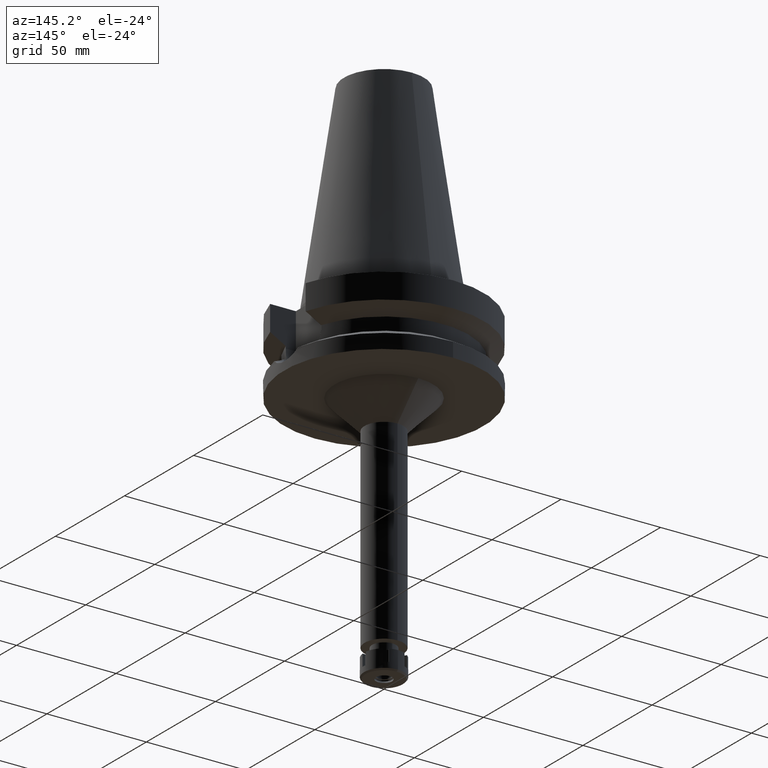
[diagram: clean part render]
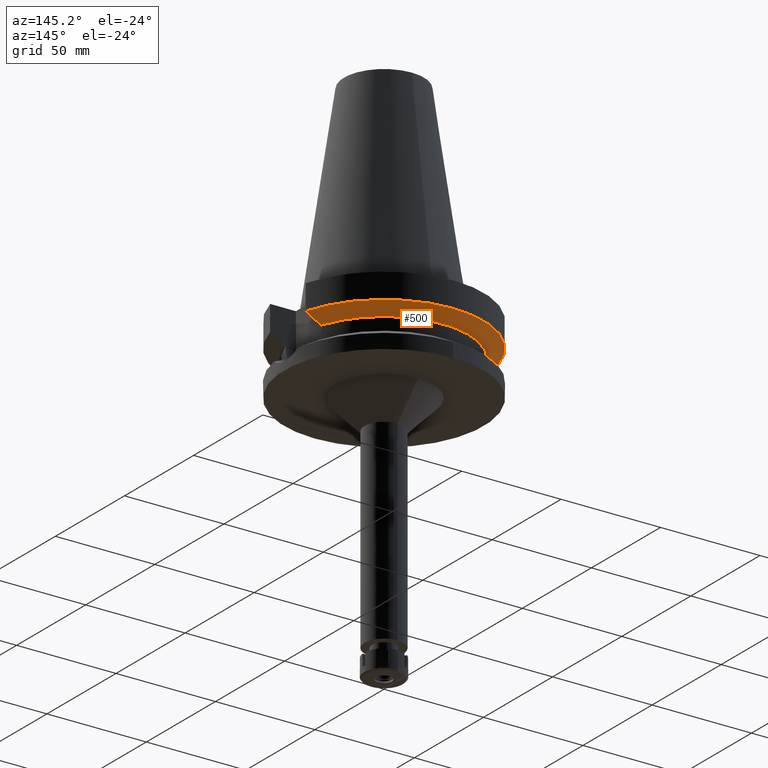
[diagram: same view with one face highlighted and labeled with its STEP entity id]
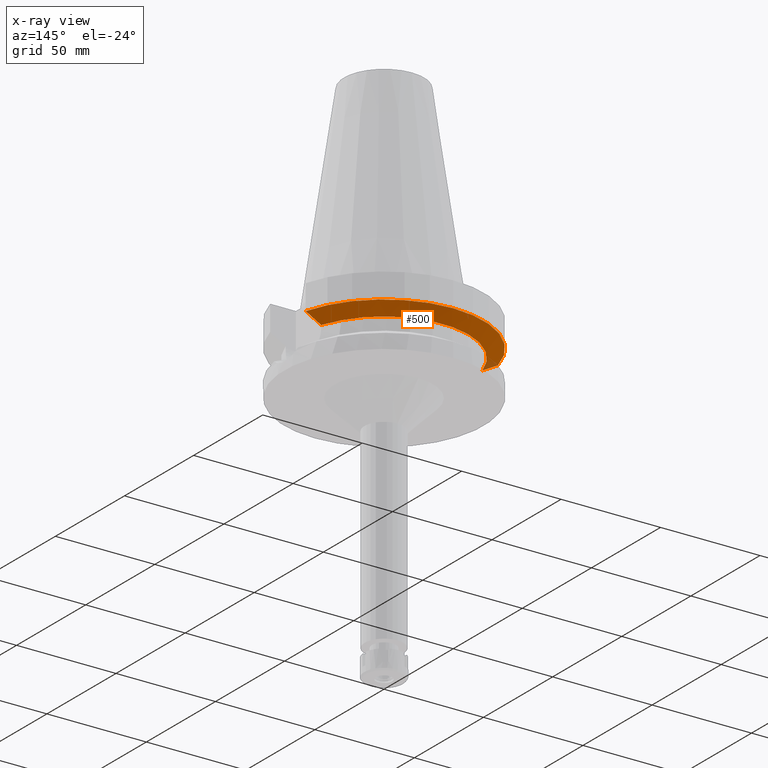
[diagram: x-ray of the same camera — body ghosted, the highlighted face saturated]
A machine part, auxiliary view. The second image highlights one B-rep face of the part: STEP entity #500.
The next image is the same camera in x-ray: the body ghosted, the highlighted face saturated — about 2% of this face is hidden behind the body in this view.
In plain terms, the highlighted conical surface has half-angle 60 deg.
Its self-contained STEP definition (entity closure, byte-faithful):
#49 = EDGE_CURVE ( 'NONE', #1823, #3600, #1554, .T. ) ;
#101 = EDGE_CURVE ( 'NONE', #1827, #334, #3040, .T. ) ;
#294 = AXIS2_PLACEMENT_3D ( 'NONE', #2683, #2403, #1521 ) ;
#334 = VERTEX_POINT ( 'NONE', #2965 ) ;
#426 = B_SPLINE_CURVE_WITH_KNOTS ( 'NONE', 3,
 ( #741, #2649, #2668, #1485 ),
 .UNSPECIFIED., .F., .F.,
 ( 4, 4 ),
 ( 0.0000000000000000000, 1.000000000000000000 ),
 .UNSPECIFIED. ) ;
#500 = ADVANCED_FACE ( 'NONE', ( #1227 ), #3225, .T. ) ;
#741 = CARTESIAN_POINT ( 'NONE',  ( -40.51083188481999997, 12.84999999999999964, -19.99281925464999787 ) ) ;
#750 = CARTESIAN_POINT ( 'NONE',  ( 48.32056912815000516, 12.85000385725999905, -15.66265768273000170 ) ) ;
#935 = CARTESIAN_POINT ( 'NONE',  ( 0.0000000000000000000, 1.006319759053999930E-14, -17.82775574519000017 ) ) ;
#968 = EDGE_LOOP ( 'NONE', ( #2412, #1533, #3013, #2369 ) ) ;
#1227 = FACE_OUTER_BOUND ( 'NONE', #968, .T. ) ;
#1311 = B_SPLINE_CURVE_WITH_KNOTS ( 'NONE', 3,
 ( #3674, #2774, #2235, #3113 ),
 .UNSPECIFIED., .F., .F.,
 ( 4, 4 ),
 ( 0.0000000000000000000, 1.000000000000000000 ),
 .UNSPECIFIED. ) ;
#1485 = CARTESIAN_POINT ( 'NONE',  ( -48.32056912780999625, 12.85000385852000093, -15.66265767138999898 ) ) ;
#1514 = DIRECTION ( 'NONE',  ( 0.0000000000000000000, 1.000000000000000000, 0.0000000000000000000 ) ) ;
#1521 = DIRECTION ( 'NONE',  ( 0.0000000000000000000, 1.000000000000000000, 0.0000000000000000000 ) ) ;
#1533 = ORIENTED_EDGE ( 'NONE', *, *, #2064, .T. ) ;
#1554 = CIRCLE ( 'NONE', #2086, 42.50000000000002132 ) ;
#1721 = CARTESIAN_POINT ( 'NONE',  ( 0.0000000000000000000, 1.006319759053999930E-14, -19.99281925464999787 ) ) ;
#1823 = VERTEX_POINT ( 'NONE', #2100 ) ;
#1827 = VERTEX_POINT ( 'NONE', #750 ) ;
#2064 = EDGE_CURVE ( 'NONE', #1827, #3600, #1311, .T. ) ;
#2074 = DIRECTION ( 'NONE',  ( 0.0000000000000000000, 0.0000000000000000000, 1.000000000000000000 ) ) ;
#2086 = AXIS2_PLACEMENT_3D ( 'NONE', #1721, #2603, #2279 ) ;
#2100 = CARTESIAN_POINT ( 'NONE',  ( -40.51083188481999997, 12.84999999999999964, -19.99281925464999787 ) ) ;
#2105 = CARTESIAN_POINT ( 'NONE',  ( 40.51083297203000200, 12.84999657246999938, -19.99284555851999912 ) ) ;
#2235 = CARTESIAN_POINT ( 'NONE',  ( 42.90862489466591256, 12.84999313797018594, -18.67324780284967645 ) ) ;
#2279 = DIRECTION ( 'NONE',  ( -0.9531960443486575674, 0.3023529411764863672, 0.0000000000000000000 ) ) ;
#2369 = ORIENTED_EDGE ( 'NONE', *, *, #3241, .T. ) ;
#2403 = DIRECTION ( 'NONE',  ( 0.0000000000000000000, 0.0000000000000000000, 1.000000000000000000 ) ) ;
#2412 = ORIENTED_EDGE ( 'NONE', *, *, #101, .F. ) ;
#2603 = DIRECTION ( 'NONE',  ( 0.0000000000000000000, 0.0000000000000000000, -1.000000000000000000 ) ) ;
#2628 = AXIS2_PLACEMENT_3D ( 'NONE', #935, #2074, #1514 ) ;
#2649 = CARTESIAN_POINT ( 'NONE',  ( -42.90863232185251519, 12.84999314245379587, -18.67324368411542324 ) ) ;
#2668 = CARTESIAN_POINT ( 'NONE',  ( -45.51180301983914944, 12.85000771239541351, -17.22986482407244324 ) ) ;
#2683 = CARTESIAN_POINT ( 'NONE',  ( 0.0000000000000000000, 1.006319759053999930E-14, -15.66269223573000069 ) ) ;
#2774 = CARTESIAN_POINT ( 'NONE',  ( 45.51179901593025079, 12.85000770987397090, -17.22986705846993161 ) ) ;
#2965 = CARTESIAN_POINT ( 'NONE',  ( -48.32056912780999625, 12.85000385852000093, -15.66265767138999898 ) ) ;
#3013 = ORIENTED_EDGE ( 'NONE', *, *, #49, .F. ) ;
#3040 = CIRCLE ( 'NONE', #294, 50.00000000000000000 ) ;
#3113 = CARTESIAN_POINT ( 'NONE',  ( 40.51083297203000200, 12.84999657246999938, -19.99284555851999912 ) ) ;
#3225 = CONICAL_SURFACE ( 'NONE', #2628, 46.25000000000000000, 1.047197551196400456 ) ;
#3241 = EDGE_CURVE ( 'NONE', #1823, #334, #426, .T. ) ;
#3600 = VERTEX_POINT ( 'NONE', #2105 ) ;
#3674 = CARTESIAN_POINT ( 'NONE',  ( 48.32056912815000516, 12.85000385725999905, -15.66265768273000170 ) ) ;